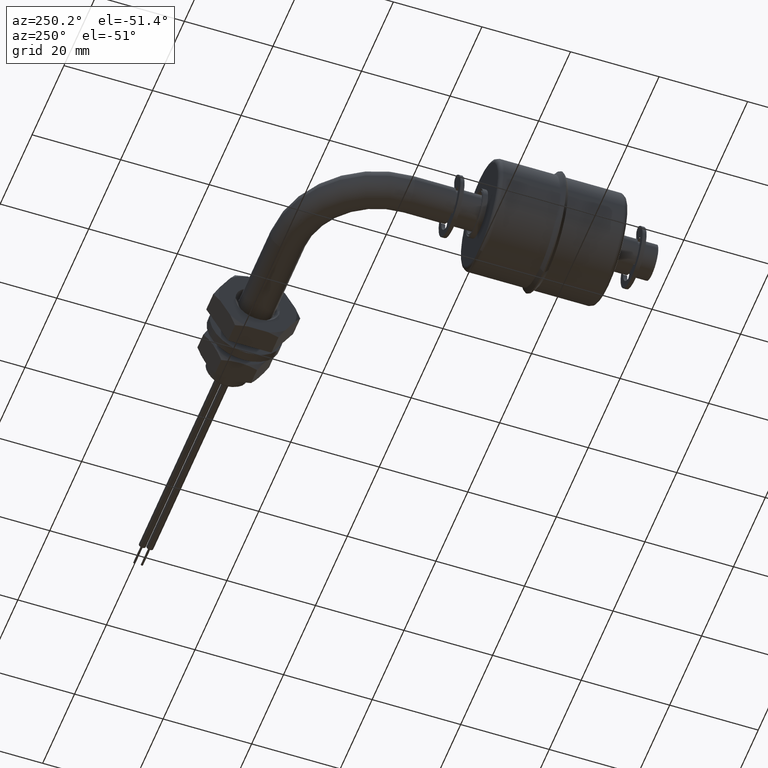
[diagram: clean part render]
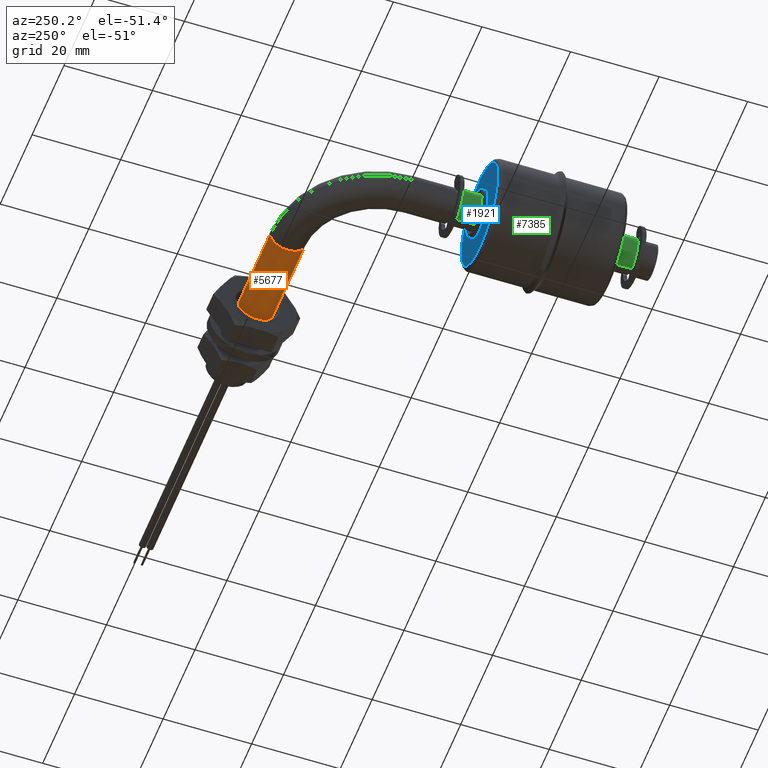
[diagram: same view with three faces highlighted in distinct colors, each labeled with its STEP entity id]
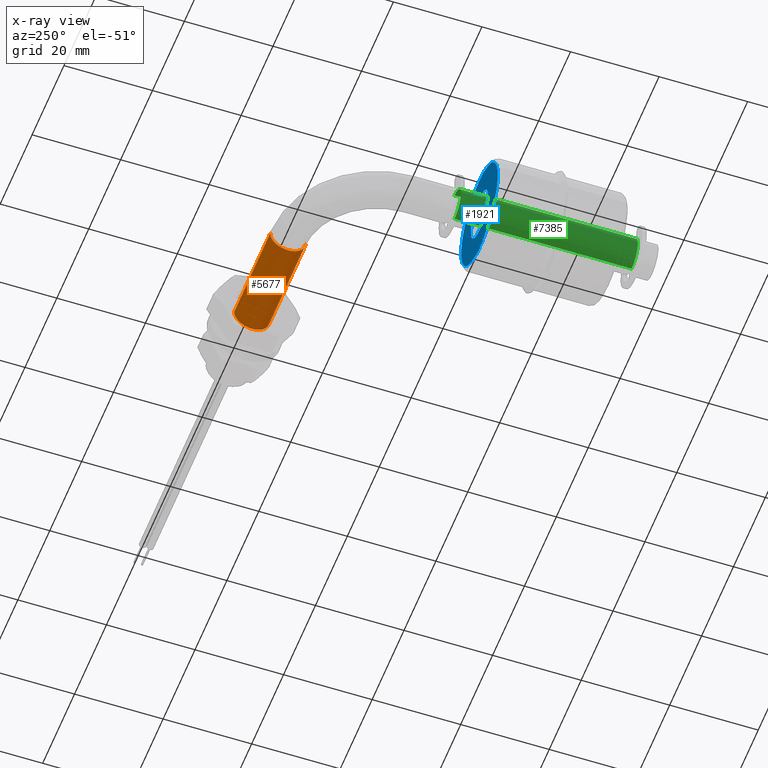
[diagram: x-ray of the same camera — body ghosted, the three highlighted faces saturated]
A machine part, auxiliary view with three faces highlighted in distinct colors.
The next image is the same camera in x-ray (body ghosted, the three faces saturated) — at least one of them is partly hidden behind the body in this view.
Their STEP definitions:

[orange] entity #5677 — the highlighted cylindrical surface (edge-blend (fillet) strip) has radius 4 mm, axis along (1, 0, 0).
#291 = CARTESIAN_POINT ( 'NONE',  ( 19.99999999999999289, 70.99999999999998579, 4.898587196589412829E-16 ) ) ;
#403 = CARTESIAN_POINT ( 'NONE',  ( 19.99999999999998934, 70.99999999999998579, 4.898587196589407898E-16 ) ) ;
#522 = DIRECTION ( 'NONE',  ( 1.000000000000000000, 6.033820786006289662E-16, 0.0000000000000000000 ) ) ;
#604 = VERTEX_POINT ( 'NONE', #403 ) ;
#766 = AXIS2_PLACEMENT_3D ( 'NONE', #8538, #3592, #1186 ) ;
#1186 = DIRECTION ( 'NONE',  ( 0.0000000000000000000, 0.0000000000000000000, 1.000000000000000000 ) ) ;
#1424 = CIRCLE ( 'NONE', #5991, 4.000000000000000000 ) ;
#1527 = CARTESIAN_POINT ( 'NONE',  ( 42.70000000000000284, 79.00000000000000000, 0.0000000000000000000 ) ) ;
#3309 = CARTESIAN_POINT ( 'NONE',  ( 42.70000000000000284, 75.00000000000000000, 0.0000000000000000000 ) ) ;
#3318 = VERTEX_POINT ( 'NONE', #6672 ) ;
#3331 = CARTESIAN_POINT ( 'NONE',  ( 19.99999999999998579, 78.99999999999998579, 0.0000000000000000000 ) ) ;
#3408 = DIRECTION ( 'NONE',  ( 0.0000000000000000000, 0.0000000000000000000, -1.000000000000000000 ) ) ;
#3592 = DIRECTION ( 'NONE',  ( 1.000000000000000000, 2.832769448823989808E-16, 0.0000000000000000000 ) ) ;
#4162 = DIRECTION ( 'NONE',  ( -1.000000000000000000, 0.0000000000000000000, 0.0000000000000000000 ) ) ;
#4691 = EDGE_LOOP ( 'NONE', ( #5694, #6675, #7440, #5951 ) ) ;
#5028 = CIRCLE ( 'NONE', #766, 4.000000000000000000 ) ;
#5060 = FACE_OUTER_BOUND ( 'NONE', #4691, .T. ) ;
#5394 = LINE ( 'NONE', #291, #8054 ) ;
#5635 = AXIS2_PLACEMENT_3D ( 'NONE', #5775, #8981, #8157 ) ;
#5677 = ADVANCED_FACE ( 'NONE', ( #5060 ), #9133, .T. ) ;
#5694 = ORIENTED_EDGE ( 'NONE', *, *, #7298, .F. ) ;
#5775 = CARTESIAN_POINT ( 'NONE',  ( 19.99999999999998934, 74.99999999999998579, 0.0000000000000000000 ) ) ;
#5940 = CARTESIAN_POINT ( 'NONE',  ( 42.70000000000000284, 71.00000000000000000, 4.898587196589407898E-16 ) ) ;
#5951 = ORIENTED_EDGE ( 'NONE', *, *, #6518, .T. ) ;
#5991 = AXIS2_PLACEMENT_3D ( 'NONE', #3309, #4162, #3408 ) ;
#6518 = EDGE_CURVE ( 'NONE', #8892, #6580, #1424, .T. ) ;
#6580 = VERTEX_POINT ( 'NONE', #5940 ) ;
#6672 = CARTESIAN_POINT ( 'NONE',  ( 19.99999999999998934, 78.99999999999998579, 0.0000000000000000000 ) ) ;
#6675 = ORIENTED_EDGE ( 'NONE', *, *, #9343, .T. ) ;
#6716 = LINE ( 'NONE', #3331, #9388 ) ;
#7298 = EDGE_CURVE ( 'NONE', #604, #6580, #5394, .T. ) ;
#7440 = ORIENTED_EDGE ( 'NONE', *, *, #9141, .T. ) ;
#8054 = VECTOR ( 'NONE', #522, 1000.000000000000000 ) ;
#8157 = DIRECTION ( 'NONE',  ( -8.673617379884027583E-16, 1.000000000000000000, 0.0000000000000000000 ) ) ;
#8538 = CARTESIAN_POINT ( 'NONE',  ( 19.99999999999998934, 74.99999999999998579, 0.0000000000000000000 ) ) ;
#8892 = VERTEX_POINT ( 'NONE', #1527 ) ;
#8981 = DIRECTION ( 'NONE',  ( 1.000000000000000000, 6.033820786006289662E-16, 0.0000000000000000000 ) ) ;
#9112 = DIRECTION ( 'NONE',  ( 1.000000000000000000, 6.033820786006289662E-16, 0.0000000000000000000 ) ) ;
#9133 = CYLINDRICAL_SURFACE ( 'NONE', #5635, 4.000000000000003553 ) ;
#9141 = EDGE_CURVE ( 'NONE', #3318, #8892, #6716, .T. ) ;
#9343 = EDGE_CURVE ( 'NONE', #604, #3318, #5028, .T. ) ;
#9388 = VECTOR ( 'NONE', #9112, 1000.000000000000000 ) ;

[blue] entity #1921 — the highlighted planar face has unit normal (0, 1, 0).
#580 = CIRCLE ( 'NONE', #5984, 5.400999999999999801 ) ;
#715 = DIRECTION ( 'NONE',  ( 0.0000000000000000000, 1.000000000000000000, 0.0000000000000000000 ) ) ;
#745 = CARTESIAN_POINT ( 'NONE',  ( 0.0000000000000000000, 38.94999999999999574, -5.400999999999999801 ) ) ;
#1021 = EDGE_LOOP ( 'NONE', ( #10094, #6885 ) ) ;
#1073 = VERTEX_POINT ( 'NONE', #5696 ) ;
#1300 = CIRCLE ( 'NONE', #9386, 5.400999999999999801 ) ;
#1412 = DIRECTION ( 'NONE',  ( -0.0000000000000000000, -1.000000000000000000, -0.0000000000000000000 ) ) ;
#1921 = ADVANCED_FACE ( 'NONE', ( #5589, #3167 ), #7178, .T. ) ;
#1945 = DIRECTION ( 'NONE',  ( 0.0000000000000000000, 0.0000000000000000000, -1.000000000000000000 ) ) ;
#2612 = VERTEX_POINT ( 'NONE', #9328 ) ;
#3115 = DIRECTION ( 'NONE',  ( 0.0000000000000000000, -0.0000000000000000000, 1.000000000000000000 ) ) ;
#3167 = FACE_OUTER_BOUND ( 'NONE', #1021, .T. ) ;
#3444 = DIRECTION ( 'NONE',  ( 0.0000000000000000000, 0.0000000000000000000, -1.000000000000000000 ) ) ;
#4244 = EDGE_LOOP ( 'NONE', ( #6944, #7655 ) ) ;
#4384 = CARTESIAN_POINT ( 'NONE',  ( 0.0000000000000000000, 38.94999999999999574, 0.0000000000000000000 ) ) ;
#4445 = DIRECTION ( 'NONE',  ( -0.0000000000000000000, -1.000000000000000000, -0.0000000000000000000 ) ) ;
#4547 = EDGE_CURVE ( 'NONE', #1073, #2612, #8647, .T. ) ;
#4993 = DIRECTION ( 'NONE',  ( -0.0000000000000000000, -1.000000000000000000, -0.0000000000000000000 ) ) ;
#5589 = FACE_BOUND ( 'NONE', #4244, .T. ) ;
#5643 = CARTESIAN_POINT ( 'NONE',  ( 0.0000000000000000000, 38.94999999999999574, 0.0000000000000000000 ) ) ;
#5696 = CARTESIAN_POINT ( 'NONE',  ( 1.469576158976823947E-15, 38.94999999999999574, 11.50000000000000000 ) ) ;
#5984 = AXIS2_PLACEMENT_3D ( 'NONE', #10409, #1412, #10243 ) ;
#6213 = EDGE_CURVE ( 'NONE', #9422, #9733, #580, .T. ) ;
#6481 = CARTESIAN_POINT ( 'NONE',  ( 5.400999999999999801, 38.94999999999999574, 0.0000000000000000000 ) ) ;
#6561 = AXIS2_PLACEMENT_3D ( 'NONE', #6481, #715, #3115 ) ;
#6740 = AXIS2_PLACEMENT_3D ( 'NONE', #5643, #10451, #8080 ) ;
#6885 = ORIENTED_EDGE ( 'NONE', *, *, #4547, .F. ) ;
#6944 = ORIENTED_EDGE ( 'NONE', *, *, #10120, .T. ) ;
#7178 = PLANE ( 'NONE',  #6561 ) ;
#7219 = CARTESIAN_POINT ( 'NONE',  ( 6.614317362194854447E-16, 38.94999999999999574, 5.400999999999999801 ) ) ;
#7626 = EDGE_CURVE ( 'NONE', #2612, #1073, #10090, .T. ) ;
#7655 = ORIENTED_EDGE ( 'NONE', *, *, #6213, .T. ) ;
#8080 = DIRECTION ( 'NONE',  ( 0.0000000000000000000, 0.0000000000000000000, -1.000000000000000000 ) ) ;
#8156 = AXIS2_PLACEMENT_3D ( 'NONE', #4384, #4993, #3444 ) ;
#8647 = CIRCLE ( 'NONE', #8156, 11.50000000000000000 ) ;
#9073 = CARTESIAN_POINT ( 'NONE',  ( 0.0000000000000000000, 38.94999999999999574, 0.0000000000000000000 ) ) ;
#9328 = CARTESIAN_POINT ( 'NONE',  ( 0.0000000000000000000, 38.94999999999999574, -11.50000000000000000 ) ) ;
#9386 = AXIS2_PLACEMENT_3D ( 'NONE', #9073, #4445, #1945 ) ;
#9422 = VERTEX_POINT ( 'NONE', #7219 ) ;
#9733 = VERTEX_POINT ( 'NONE', #745 ) ;
#10090 = CIRCLE ( 'NONE', #6740, 11.50000000000000000 ) ;
#10094 = ORIENTED_EDGE ( 'NONE', *, *, #7626, .F. ) ;
#10120 = EDGE_CURVE ( 'NONE', #9733, #9422, #1300, .T. ) ;
#10243 = DIRECTION ( 'NONE',  ( 0.0000000000000000000, 0.0000000000000000000, -1.000000000000000000 ) ) ;
#10409 = CARTESIAN_POINT ( 'NONE',  ( 0.0000000000000000000, 38.94999999999999574, 0.0000000000000000000 ) ) ;
#10451 = DIRECTION ( 'NONE',  ( -0.0000000000000000000, -1.000000000000000000, -0.0000000000000000000 ) ) ;

[green] entity #7385 — the highlighted cylindrical surface (edge-blend (fillet) strip) has radius 4 mm, axis along (-0, -1, -0).
#58 = FACE_OUTER_BOUND ( 'NONE', #7160, .T. ) ;
#120 = DIRECTION ( 'NONE',  ( -0.0000000000000000000, -1.000000000000000000, -0.0000000000000000000 ) ) ;
#355 = DIRECTION ( 'NONE',  ( -0.0000000000000000000, -1.000000000000000000, -0.0000000000000000000 ) ) ;
#549 = AXIS2_PLACEMENT_3D ( 'NONE', #7724, #8755, #7353 ) ;
#712 = ORIENTED_EDGE ( 'NONE', *, *, #9336, .F. ) ;
#1471 = CARTESIAN_POINT ( 'NONE',  ( 0.0000000000000000000, 44.60000000000000142, -4.000000000000000000 ) ) ;
#1778 = VERTEX_POINT ( 'NONE', #2106 ) ;
#2106 = CARTESIAN_POINT ( 'NONE',  ( 4.898587196589412829E-16, 44.60000000000000142, 4.000000000000000000 ) ) ;
#3059 = CARTESIAN_POINT ( 'NONE',  ( 4.898587196589412829E-16, 4.599999999999999645, 4.000000000000000000 ) ) ;
#3145 = ORIENTED_EDGE ( 'NONE', *, *, #4034, .T. ) ;
#4034 = EDGE_CURVE ( 'NONE', #7044, #8415, #9613, .T. ) ;
#4340 = EDGE_CURVE ( 'NONE', #7044, #1778, #6814, .T. ) ;
#5004 = AXIS2_PLACEMENT_3D ( 'NONE', #8549, #9275, #9236 ) ;
#5389 = VERTEX_POINT ( 'NONE', #3059 ) ;
#5562 = CARTESIAN_POINT ( 'NONE',  ( 0.0000000000000000000, -6.602616862911372841, -4.000000000000000000 ) ) ;
#5654 = DIRECTION ( 'NONE',  ( -0.0000000000000000000, -1.000000000000000000, -0.0000000000000000000 ) ) ;
#6137 = EDGE_CURVE ( 'NONE', #8415, #5389, #6328, .T. ) ;
#6328 = CIRCLE ( 'NONE', #5004, 4.000000000000000000 ) ;
#6366 = ORIENTED_EDGE ( 'NONE', *, *, #6137, .T. ) ;
#6814 = CIRCLE ( 'NONE', #549, 4.000000000000000000 ) ;
#6909 = CARTESIAN_POINT ( 'NONE',  ( 4.898587196589412829E-16, -6.602616862911372841, 4.000000000000000000 ) ) ;
#7017 = VECTOR ( 'NONE', #355, 1000.000000000000000 ) ;
#7044 = VERTEX_POINT ( 'NONE', #1471 ) ;
#7136 = CARTESIAN_POINT ( 'NONE',  ( 0.0000000000000000000, -6.602616862911372841, 0.0000000000000000000 ) ) ;
#7160 = EDGE_LOOP ( 'NONE', ( #712, #8928, #3145, #6366 ) ) ;
#7353 = DIRECTION ( 'NONE',  ( 0.0000000000000000000, 0.0000000000000000000, 1.000000000000000000 ) ) ;
#7385 = ADVANCED_FACE ( 'NONE', ( #58 ), #9654, .T. ) ;
#7605 = LINE ( 'NONE', #6909, #7017 ) ;
#7724 = CARTESIAN_POINT ( 'NONE',  ( 0.0000000000000000000, 44.60000000000000142, 0.0000000000000000000 ) ) ;
#8415 = VERTEX_POINT ( 'NONE', #10247 ) ;
#8549 = CARTESIAN_POINT ( 'NONE',  ( 0.0000000000000000000, 4.599999999999999645, 0.0000000000000000000 ) ) ;
#8705 = DIRECTION ( 'NONE',  ( 0.0000000000000000000, 0.0000000000000000000, -1.000000000000000000 ) ) ;
#8713 = AXIS2_PLACEMENT_3D ( 'NONE', #7136, #5654, #8705 ) ;
#8755 = DIRECTION ( 'NONE',  ( -0.0000000000000000000, 1.000000000000000000, -0.0000000000000000000 ) ) ;
#8928 = ORIENTED_EDGE ( 'NONE', *, *, #4340, .F. ) ;
#9137 = VECTOR ( 'NONE', #120, 1000.000000000000000 ) ;
#9236 = DIRECTION ( 'NONE',  ( 0.0000000000000000000, 0.0000000000000000000, 1.000000000000000000 ) ) ;
#9275 = DIRECTION ( 'NONE',  ( -0.0000000000000000000, 1.000000000000000000, -0.0000000000000000000 ) ) ;
#9336 = EDGE_CURVE ( 'NONE', #1778, #5389, #7605, .T. ) ;
#9613 = LINE ( 'NONE', #5562, #9137 ) ;
#9654 = CYLINDRICAL_SURFACE ( 'NONE', #8713, 4.000000000000000000 ) ;
#10247 = CARTESIAN_POINT ( 'NONE',  ( 0.0000000000000000000, 4.599999999999999645, -4.000000000000000000 ) ) ;